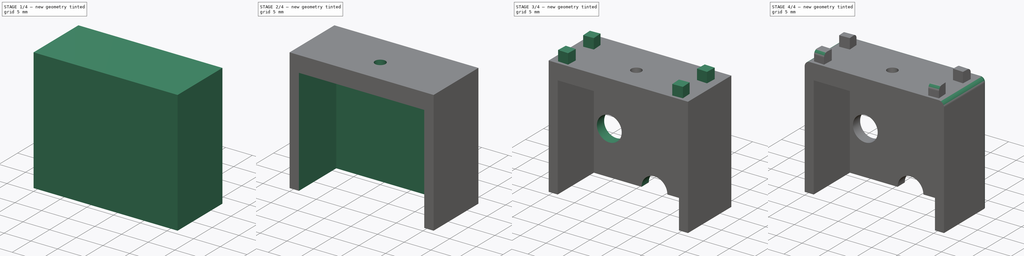
[diagram: build sequence overview — one tinted view per stage of 4, left to right]
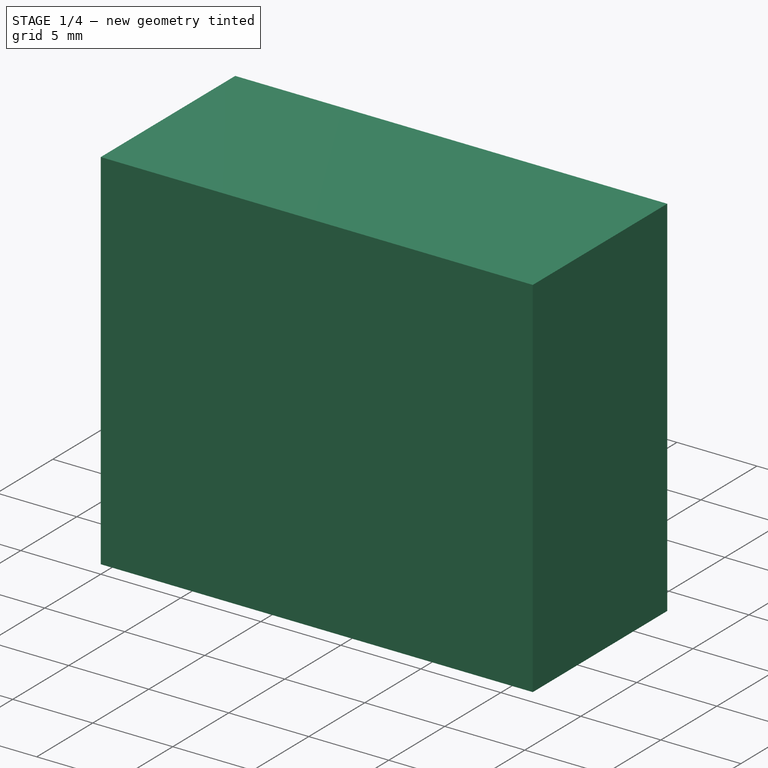
[diagram: stage 1 of 4 — iso view after this stage's code; geometry added in this stage tinted green]
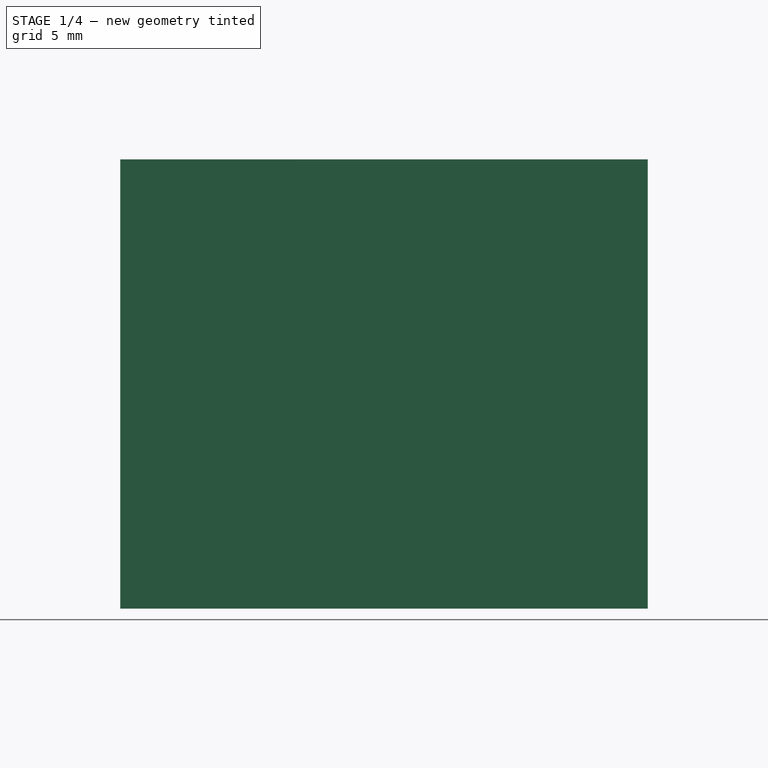
[diagram: stage 1 of 4 — front view after this stage's code; geometry added in this stage tinted green]
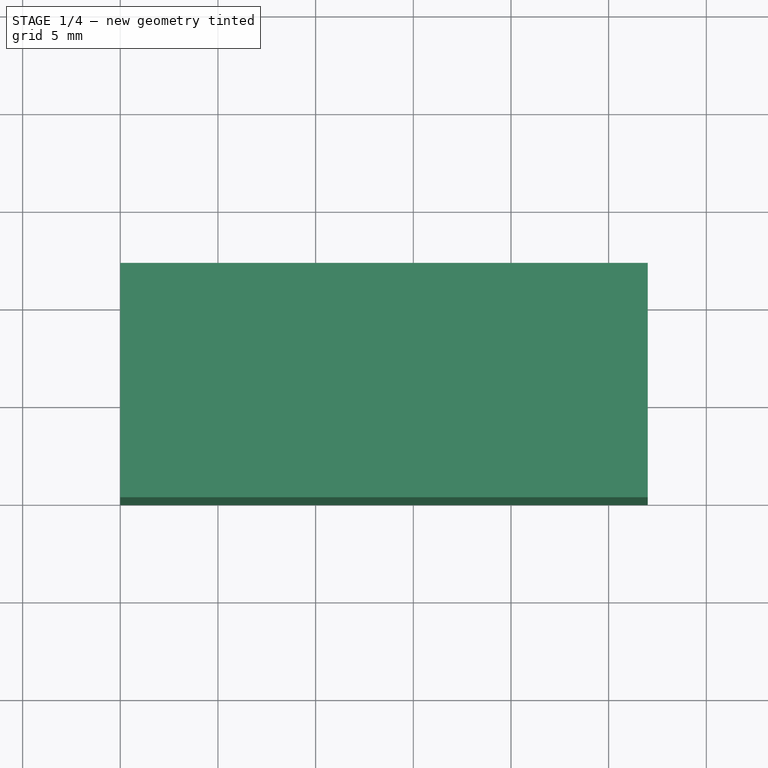
[diagram: stage 1 of 4 — top view after this stage's code; geometry added in this stage tinted green]
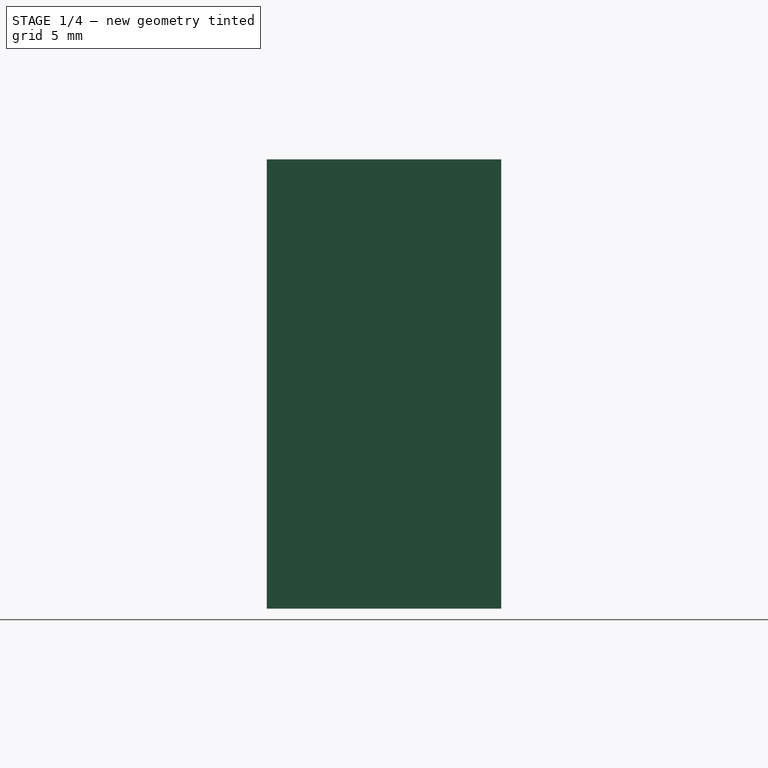
[diagram: stage 1 of 4 — right view after this stage's code; geometry added in this stage tinted green]
FCSTD DOCUMENT  (FreeCAD 0.17R13541 (Git))
Label: ServoToDC
License: All rights reserved
LicenseURL: http://en.wikipedia.org/wiki/All_rights_reserved
objects: Sketcher::SketchObject×6, PartDesign::Pocket×5, PartDesign::Fillet×2, Part::Box×1, PartDesign::FeatureBase×1, PartDesign::Pad×1, PartDesign::Body×1
note: 23 computed .brp shape members not serialized (recipe doc carries the construction recipe); baked Part::Feature solids carry a one-line shape summary decoded from their .brp

FEATURE [Part::Box] Box  label="Cube"
  AttacherType = Attacher::AttachEngine3D
  Height = 23
  Length = 27
  Width = 12
FEATURE [PartDesign::FeatureBase] BaseFeature
  BaseFeature = -> Box
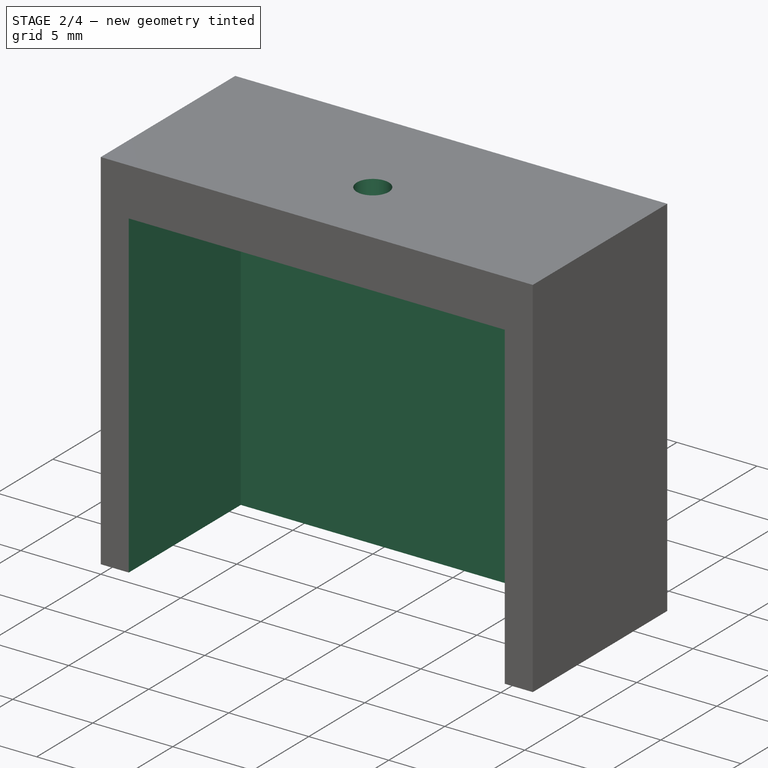
[diagram: stage 2 of 4 — iso view after this stage's code; geometry added in this stage tinted green]
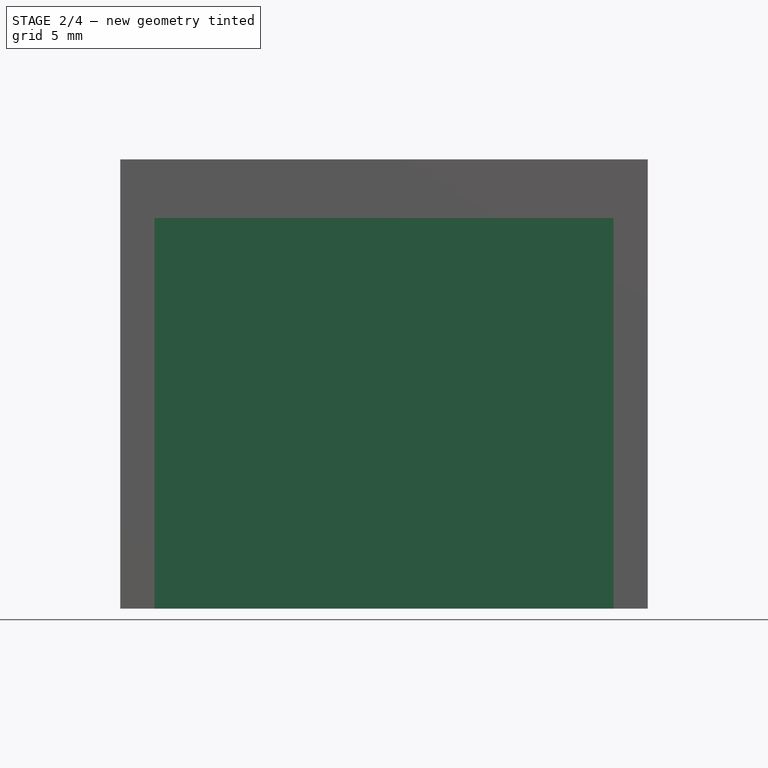
[diagram: stage 2 of 4 — front view after this stage's code; geometry added in this stage tinted green]
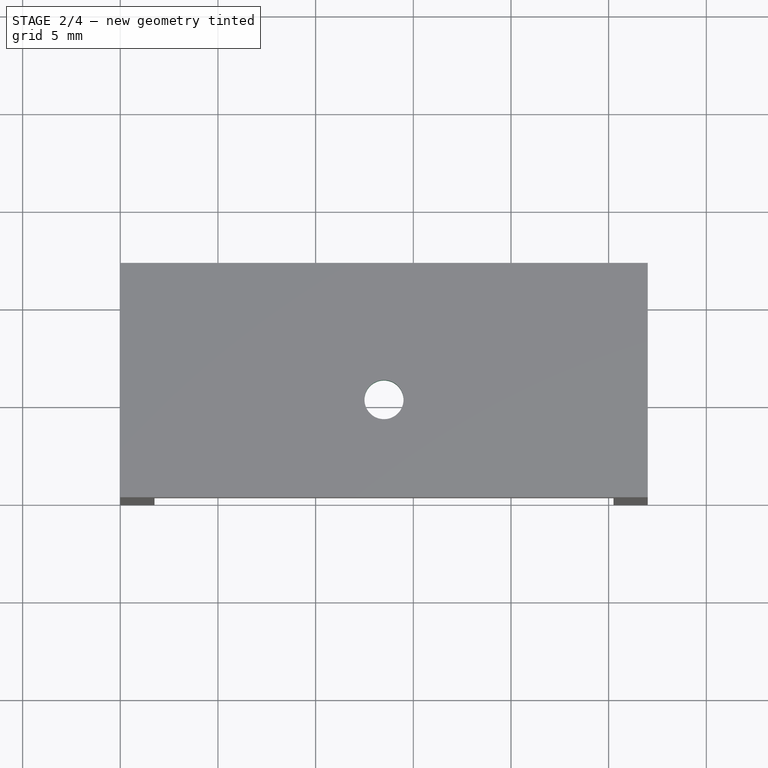
[diagram: stage 2 of 4 — top view after this stage's code; geometry added in this stage tinted green]
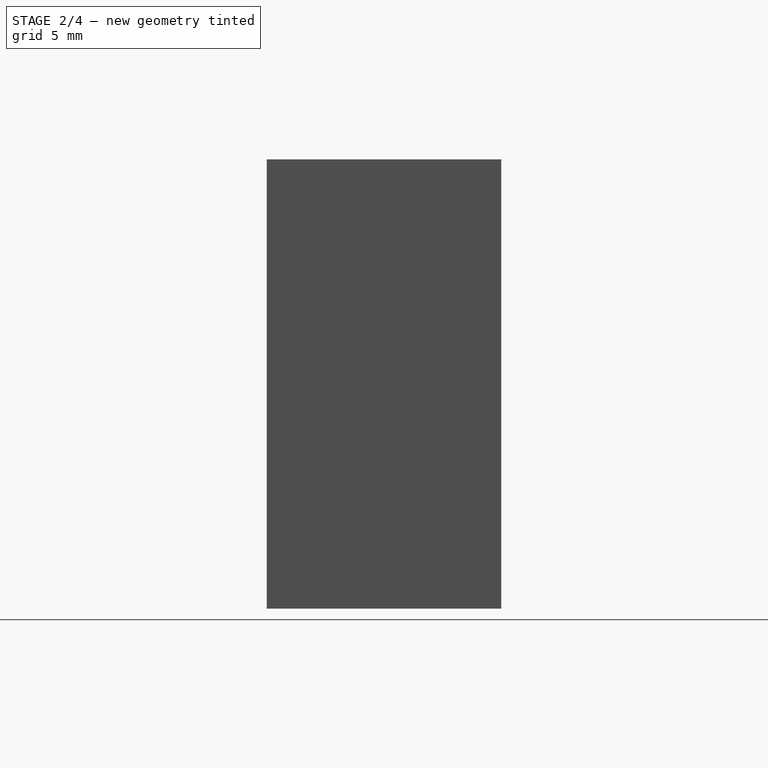
[diagram: stage 2 of 4 — right view after this stage's code; geometry added in this stage tinted green]
FEATURE [Sketcher::SketchObject] Sketch  label="MotorHole"
  ExternalGeometry = -> [BaseFeature]
  MapMode = 5
  Placement = pos=(0,0,0) rot=(1,0,0;1.5708rad)
  Support = -> [BaseFeature]
  sketch-geometry (5):
    g0: LineSegment StartX=1.75 StartY=20 StartZ=0 EndX=25.25 EndY=20 EndZ=0
    g1: LineSegment StartX=25.25 StartY=20 StartZ=0 EndX=25.25 EndY=0 EndZ=0
    g2: LineSegment StartX=25.25 StartY=0 StartZ=0 EndX=1.75 EndY=0 EndZ=0
    g3: LineSegment StartX=1.75 StartY=0 StartZ=0 EndX=1.75 EndY=20 EndZ=0
    g4: GeomPoint X=13.5 Y=0 Z=0
  constraints (13):
    c: Coincident(g0,g1)
    c: Coincident(g1,g2)
    c: Coincident(g2,g3)
    c: Coincident(g3,g0)
    c: Horizontal(g0)
    c: Horizontal(g2)
    c: Vertical(g1)
    c: Vertical(g3)
    c: PointOnObject(g2,g-5)
    c: Symmetric(g2,g1,g4)
    c: Symmetric(g-1,g-5,g4)
    c: DistanceX(g0,g0) = 23.5
    c: DistanceY(g1,g1) = 20
FEATURE [PartDesign::Pocket] Pocket  label="MotorPocket"
  BaseFeature = -> BaseFeature
  Length = 10
  Length2 = 100
  Profile = -> Sketch
  Type = 0
FEATURE [Sketcher::SketchObject] Sketch002  label="ServoScrewHole"
  ExternalGeometry = -> [Pocket]
  MapMode = 5
  Placement = pos=(0,0,20) rot=(1,0,0;3.14159rad)
  Support = -> [Pocket]
  sketch-geometry (3):
    g0: Circle CenterX=13.5 CenterY=-5 CenterZ=0 NormalX=0 NormalY=0 NormalZ=1 AngleXU=0 Radius=1
    g1: GeomPoint X=13.5 Y=0 Z=0
    g2: GeomPoint X=25.25 Y=-5 Z=0
  constraints (5):
    c: Radius(g0) = 1
    c: Symmetric(g-4,g-5,g1)
    c: Vertical(g1,g0)
    c: Symmetric(g-5,g-5,g2)
    c: Horizontal(g2,g0)
FEATURE [PartDesign::Pocket] Pocket001  label="ScrewPocket"
  BaseFeature = -> Pocket
  Length = 5
  Length2 = 100
  Profile = -> Sketch002
  Type = 1
FEATURE [Sketcher::SketchObject] Sketch003  label="ScrewHead"
  ExternalGeometry = -> [Pocket001]
  MapMode = 5
  Placement = pos=(0,0,20) rot=(1,0,0;3.14159rad)
  Support = -> [Pocket001]
  sketch-geometry (3):
    g0: GeomPoint X=25.1 Y=-5 Z=0
    g1: GeomPoint X=13.5 Y=0 Z=0
    g2: Circle CenterX=13.5 CenterY=-5 CenterZ=0 NormalX=0 NormalY=0 NormalZ=1 AngleXU=0 Radius=2
  constraints (7):
    c: PointOnObject(g0,g-5)
    c: PointOnObject(g1,g-3)
    c: Symmetric(g-4,g-5,g1)
    c: Symmetric(g-5,g-5,g0)
    c: Vertical(g1,g2)
    c: Horizontal(g2,g0)
    c: Radius(g2) = 2
FEATURE [PartDesign::Pocket] Pocket002  label="ScrewHeadPocket"
  BaseFeature = -> Pocket001
  Length = 1.5
  Length2 = 100
  Profile = -> Sketch003
  Type = 0
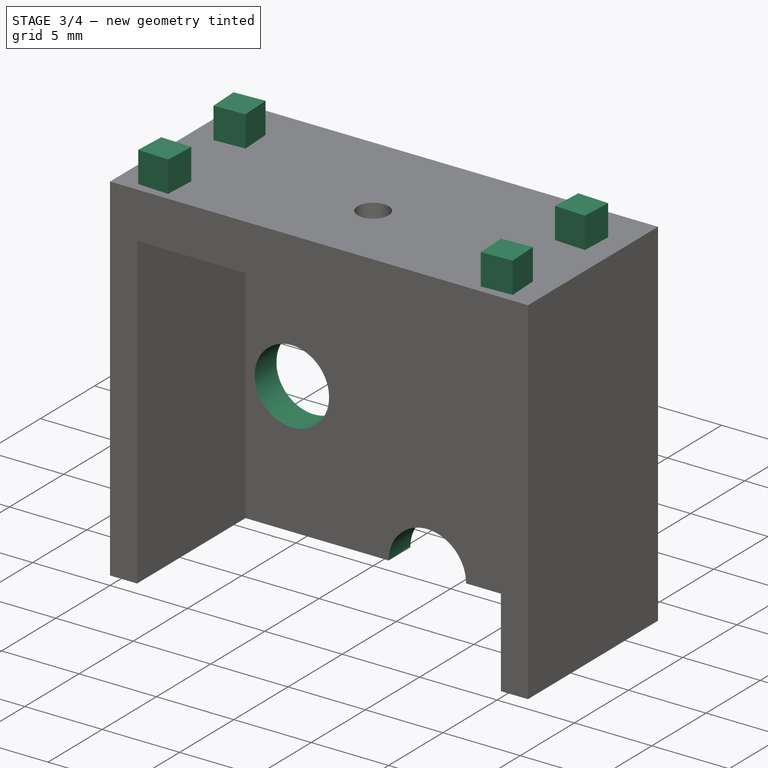
[diagram: stage 3 of 4 — iso view after this stage's code; geometry added in this stage tinted green]
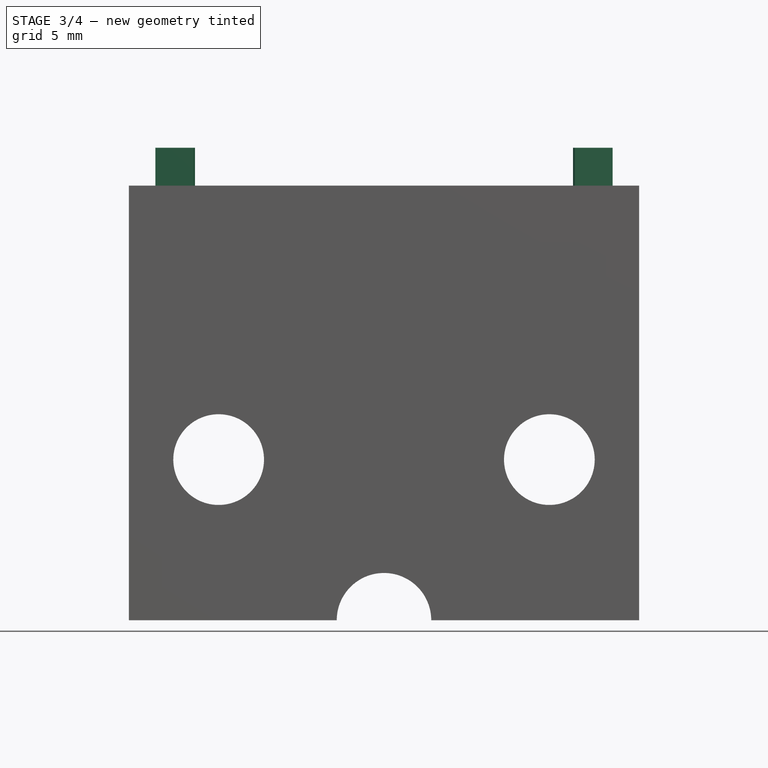
[diagram: stage 3 of 4 — front view after this stage's code; geometry added in this stage tinted green]
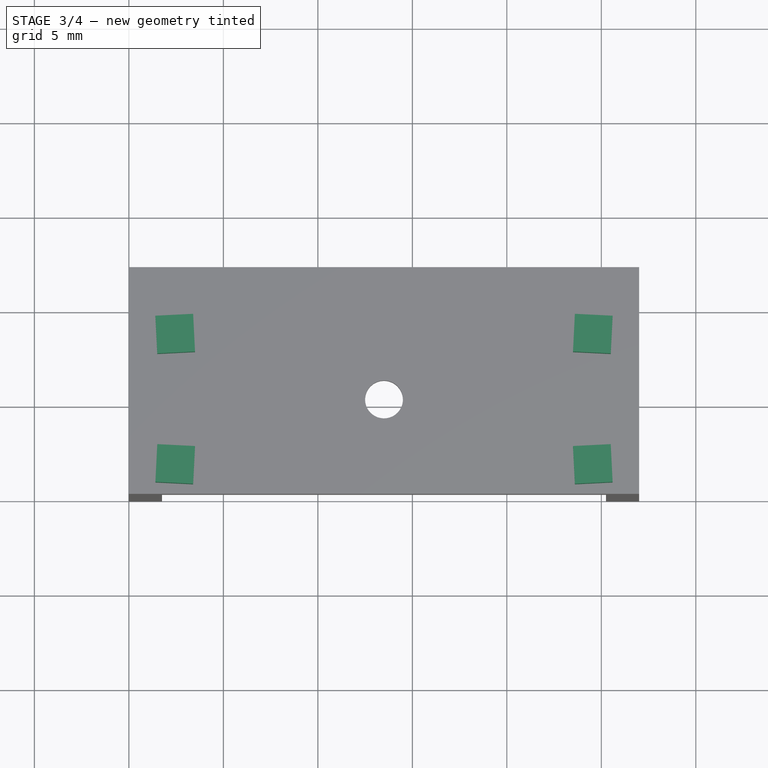
[diagram: stage 3 of 4 — top view after this stage's code; geometry added in this stage tinted green]
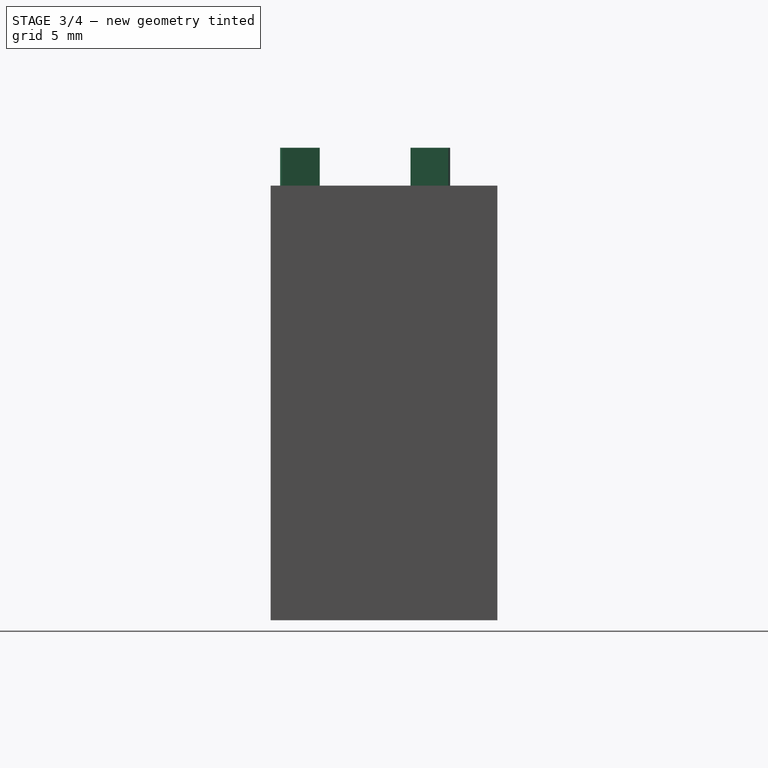
[diagram: stage 3 of 4 — right view after this stage's code; geometry added in this stage tinted green]
FEATURE [Sketcher::SketchObject] Sketch004  label="MotorScrews"
  ExternalGeometry = -> [Pocket002]
  MapMode = 5
  Placement = pos=(0,10,0) rot=(1,0,0;1.5708rad)
  Support = -> [Pocket002]
  sketch-geometry (4):
    g0: Circle CenterX=4.75 CenterY=8.5 CenterZ=0 NormalX=0 NormalY=0 NormalZ=1 AngleXU=0 Radius=2.4
    g1: Circle CenterX=22.25 CenterY=8.5 CenterZ=0 NormalX=0 NormalY=0 NormalZ=1 AngleXU=0 Radius=2.4
    g2: GeomPoint X=13.5 Y=8.5 Z=0
    g3: GeomPoint X=13.5 Y=20 Z=0
  constraints (9):
    c: Radius(g1) = 2.4
    c: Radius(g0) = 2.4
    c: Horizontal(g0,g1)
    c: DistanceX(g0,g1) = 17.5
    c: PointOnObject(g3,g-3)
    c: Symmetric(g-5,g-4,g3)
    c: Vertical(g3,g2)
    c: Symmetric(g0,g1,g2)
    c: Distance(g3,g2) = 11.5
FEATURE [PartDesign::Pocket] Pocket003  label="MotorScrewsPocket"
  BaseFeature = -> Pocket002
  Length = 5
  Length2 = 100
  Profile = -> Sketch004
  Type = 1
FEATURE [Sketcher::SketchObject] Sketch005  label="SmallArc"
  ExternalGeometry = -> [Pocket003]
  MapMode = 5
  Placement = pos=(0,10,0) rot=(1,0,0;1.5708rad)
  Support = -> [Pocket003]
  sketch-geometry (2):
    g0: ArcOfCircle CenterX=13.5 CenterY=0 CenterZ=0 NormalX=0 NormalY=0 NormalZ=1 AngleXU=0 Radius=2.5 StartAngle=0 EndAngle=3.14159
    g1: LineSegment StartX=11 StartY=0 StartZ=0 EndX=16 EndY=0 EndZ=0
  constraints (8):
    c: Angle(g0) = 3.14159
    c: PointOnObject(g0,g-3)
    c: PointOnObject(g0,g-3)
    c: Symmetric(g-3,g-3,g0)
    c: Radius(g0) = 2.5
    c: Coincident(g1,g0)
    c: Horizontal(g1)
    c: Coincident(g1,g0)
FEATURE [PartDesign::Pocket] Pocket004  label="SmallArcPocket"
  BaseFeature = -> Pocket003
  Length = 5
  Length2 = 100
  Profile = -> Sketch005
  Type = 1
FEATURE [Sketcher::SketchObject] Sketch006  label="ServoSketch"
  ExternalGeometry = -> [Pocket004]
  MapMode = 5
  Placement = pos=(0,0,23) rot=(0,0,1;0rad)
  Support = -> [Pocket004]
  sketch-geometry (18):
    g0: LineSegment StartX=3.4 StartY=9.4975 StartZ=0 EndX=1.4025 EndY=9.3975 EndZ=0
    g1: LineSegment StartX=1.4025 StartY=9.3975 StartZ=0 EndX=1.5025 EndY=7.4 EndZ=0
    g2: LineSegment StartX=1.5025 StartY=7.4 StartZ=0 EndX=3.5 EndY=7.5 EndZ=0
    g3: LineSegment StartX=3.5 StartY=7.5 StartZ=0 EndX=3.4 EndY=9.4975 EndZ=0
    g4: LineSegment StartX=1.5025 StartY=2.6 StartZ=0 EndX=3.5 EndY=2.5 EndZ=0
    g5: LineSegment StartX=3.5 StartY=2.5 StartZ=0 EndX=3.4 EndY=0.502502 EndZ=0
    g6: LineSegment StartX=3.4 StartY=0.502502 StartZ=0 EndX=1.4025 EndY=0.602502 EndZ=0
    g7: LineSegment StartX=1.4025 StartY=0.602502 StartZ=0 EndX=1.5025 EndY=2.6 EndZ=0
    g8: LineSegment StartX=23.5 StartY=2.5 StartZ=0 EndX=25.4975 EndY=2.6 EndZ=0
    g9: LineSegment StartX=25.4975 StartY=2.6 StartZ=0 EndX=25.5975 EndY=0.602502 EndZ=0
    g10: LineSegment StartX=25.5975 StartY=0.602502 StartZ=0 EndX=23.6 EndY=0.502502 EndZ=0
    g11: LineSegment StartX=23.6 StartY=0.502502 StartZ=0 EndX=23.5 EndY=2.5 EndZ=0
    g12: LineSegment StartX=23.6 StartY=9.4975 StartZ=0 EndX=25.5975 EndY=9.3975 EndZ=0
    g13: LineSegment StartX=25.5975 StartY=9.3975 StartZ=0 EndX=25.4975 EndY=7.4 EndZ=0
    g14: LineSegment StartX=25.4975 StartY=7.4 StartZ=0 EndX=23.5 EndY=7.5 EndZ=0
    g15: LineSegment StartX=23.5 StartY=7.5 StartZ=0 EndX=23.6 EndY=9.4975 EndZ=0
    g16: LineSegment [constr] StartX=0 StartY=5 StartZ=0 EndX=27 EndY=5 EndZ=0
    g17: LineSegment [constr] StartX=13.5 StartY=12 StartZ=0 EndX=13.5 EndY=0 EndZ=0
  constraints (44):
    c: Coincident(g0,g1)
    c: Coincident(g1,g2)
    c: Coincident(g2,g3)
    c: Coincident(g3,g0)
    c: Coincident(g4,g5)
    c: Coincident(g5,g6)
    c: Coincident(g6,g7)
    c: Coincident(g7,g4)
    c: Coincident(g8,g9)
    c: Coincident(g9,g10)
    c: Coincident(g10,g11)
    c: Coincident(g11,g8)
    c: Coincident(g12,g13)
    c: Coincident(g13,g14)
    c: Coincident(g14,g15)
    c: Coincident(g15,g12)
    c: PointOnObject(g16,g-5)
    c: PointOnObject(g16,g-4)
    c: Horizontal(g16)
    c: PointOnObject(g-3,g16)
    c: PointOnObject(g17,g-6)
    c: PointOnObject(g17,g-7)
    c: PointOnObject(g-3,g17)
    c: Vertical(g17)
    c: Distance(g2,g17) = 10
    c: Distance(g2) = 2
    c: Symmetric(g0,g12,g17)
    c: Symmetric(g0,g12,g17)
    c: Symmetric(g1,g13,g17)
    c: Symmetric(g13,g8,g16)
    c: Symmetric(g9,g12,g16)
    c: Symmetric(g10,g12,g16)
    c: Symmetric(g8,g14,g16)
    c: Symmetric(g5,g10,g17)
    c: Symmetric(g6,g9,g17)
    c: Symmetric(g4,g8,g17)
    c: Symmetric(g4,g8,g17)
    c: Symmetric(g2,g14,g17)
    c: Distance(g2,g4) = 5
    c: Distance(g1,g4) = 4.8
    c: Perpendicular(g0,g3)
    c: Perpendicular(g0,g1)
    c: Perpendicular(g2,g1)
    c: Distance(g3) = 2
FEATURE [PartDesign::Pad] Pad  label="ServoMount"
  BaseFeature = -> Pocket004
  Length = 2
  Length2 = 100
  Profile = -> Sketch006
  Type = 0
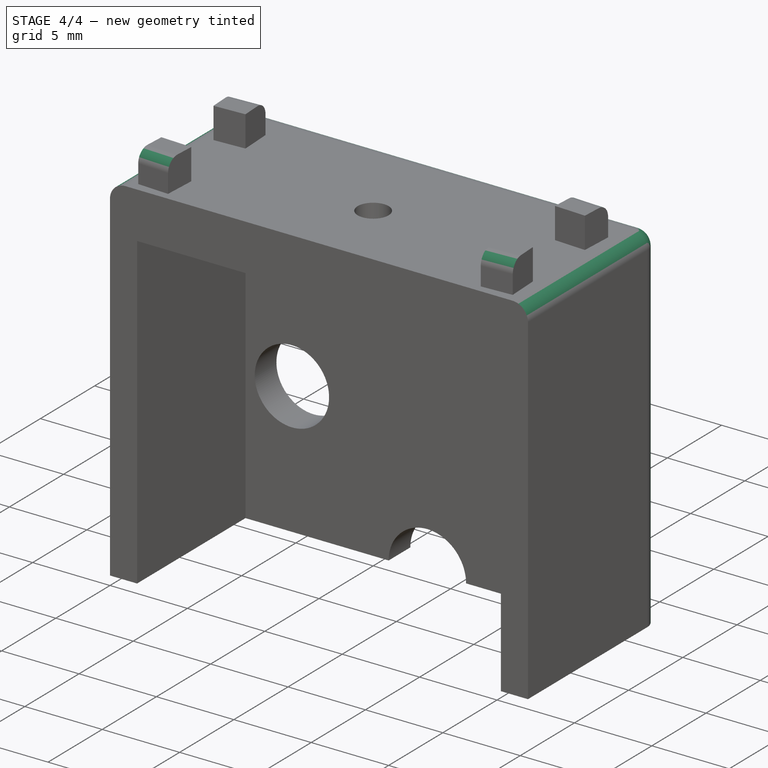
[diagram: stage 4 of 4 — iso view after this stage's code; geometry added in this stage tinted green]
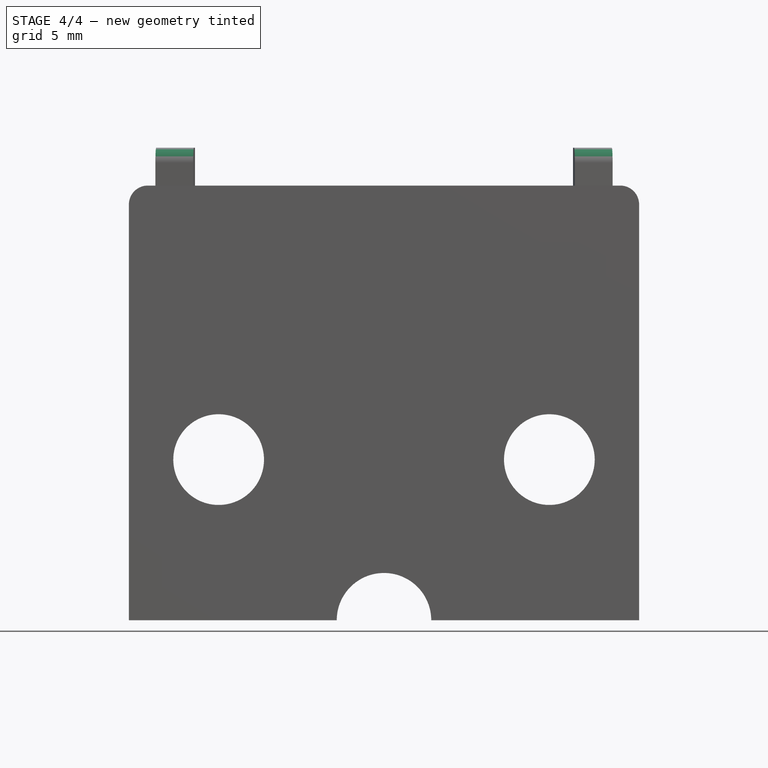
[diagram: stage 4 of 4 — front view after this stage's code; geometry added in this stage tinted green]
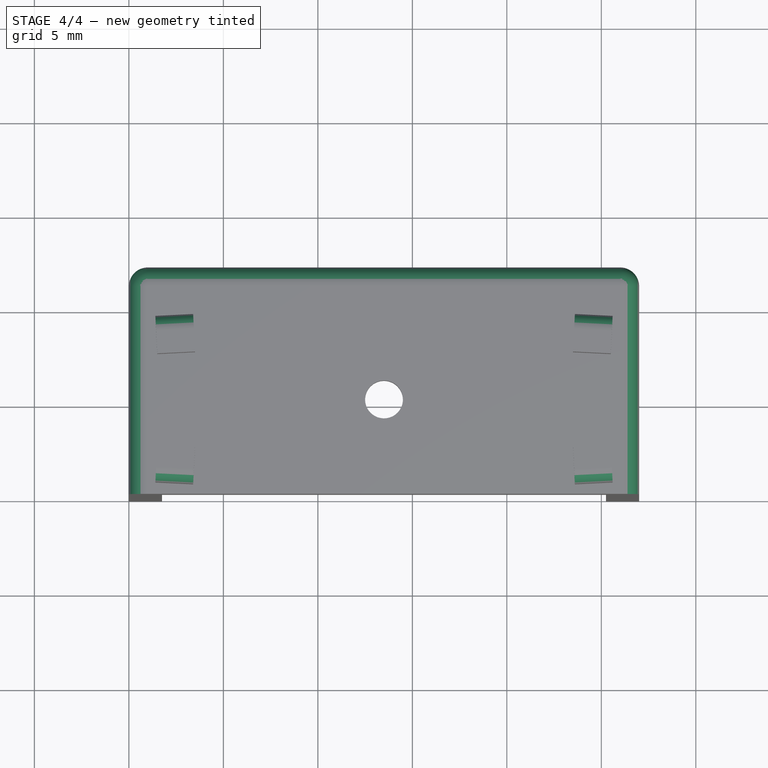
[diagram: stage 4 of 4 — top view after this stage's code; geometry added in this stage tinted green]
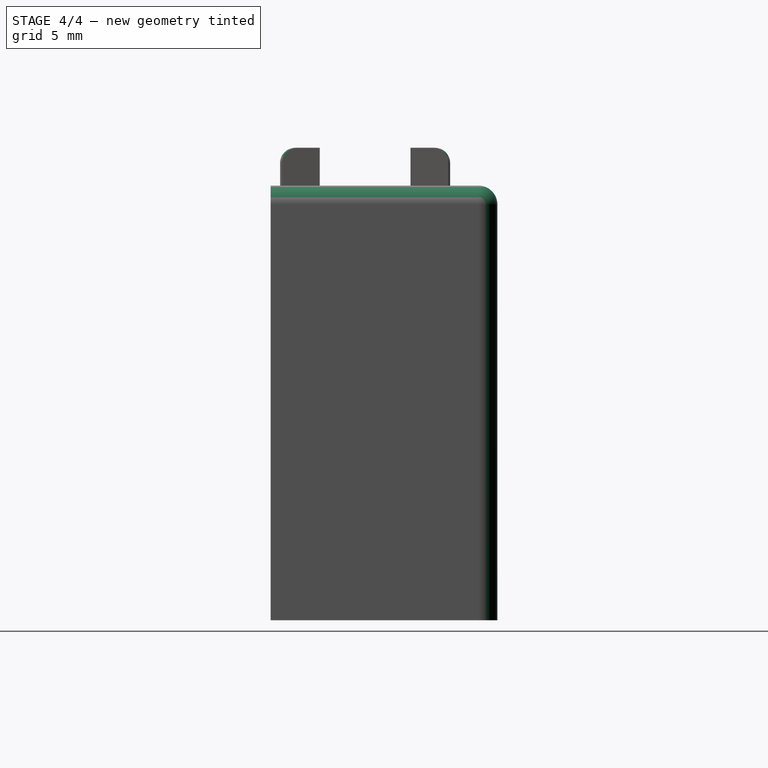
[diagram: stage 4 of 4 — right view after this stage's code; geometry added in this stage tinted green]
FEATURE [PartDesign::Fillet] Fillet
  Base = -> Pad [Edge13,Edge34,Edge12,Edge3,Edge2]
  BaseFeature = -> Pad
  Radius = 1
FEATURE [PartDesign::Fillet] Fillet001
  Base = -> Fillet [Edge80,Edge92,Edge77,Edge100]
  BaseFeature = -> Fillet
  Radius = 0.8
FEATURE [PartDesign::Body] Body
  BaseFeature = -> Box
  Group = -> [BaseFeature,Sketch,Pocket,Sketch002,Pocket001,Sketch003,Pocket002,Sketch004,Pocket003,Sketch005,Pocket004,Sketch006,Pad,Fillet,Fillet001]
  Origin = -> Origin
  Tip = -> Fillet001
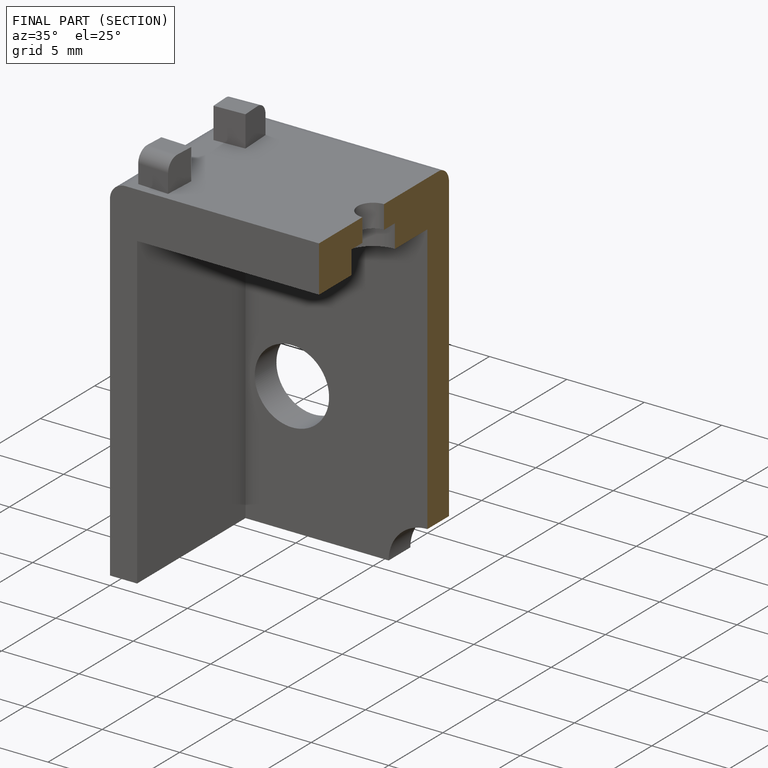
[diagram: finished part — half-section view (interior)]
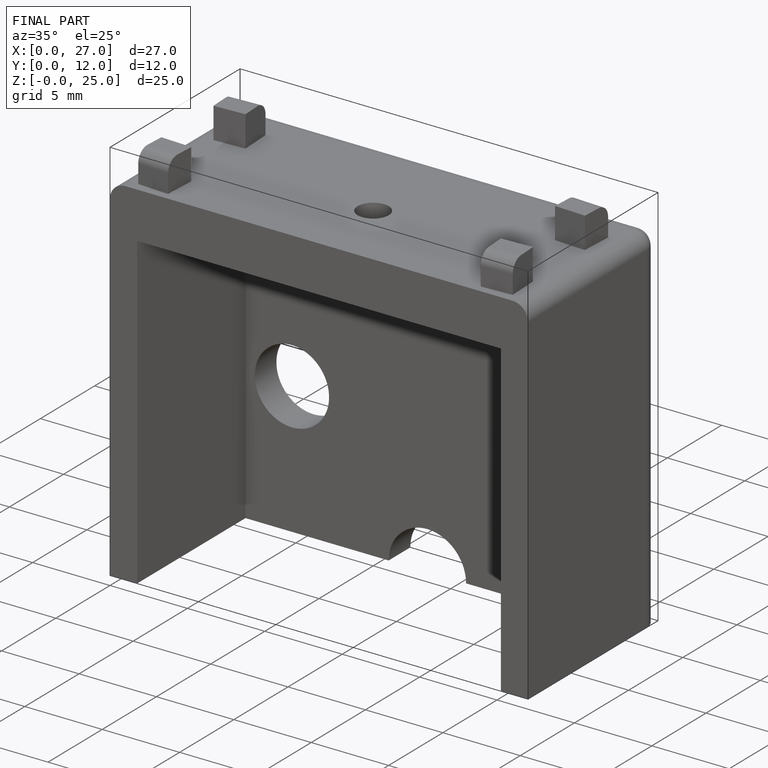
[diagram: finished part — iso view with bounding-box wireframe]
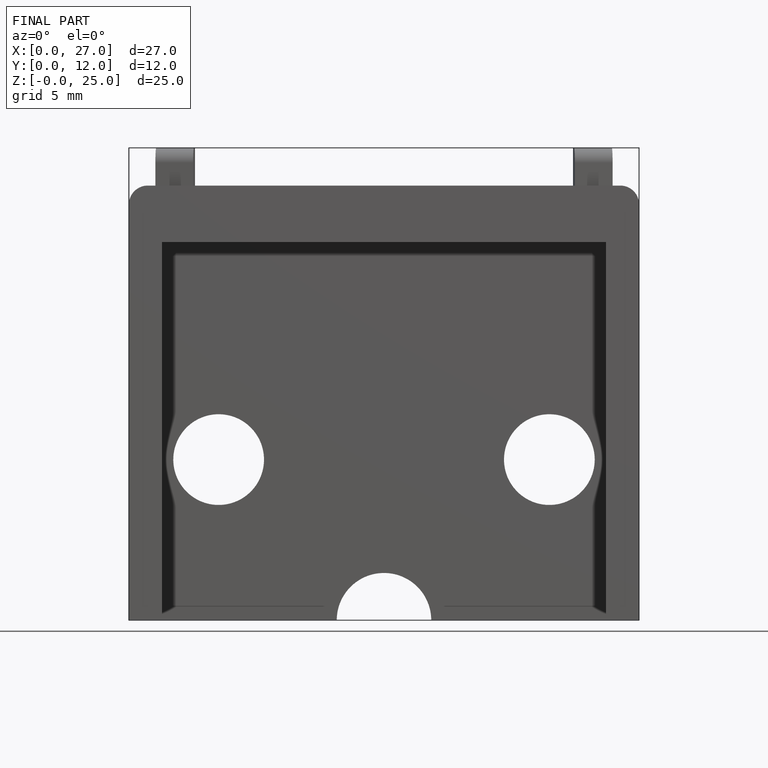
[diagram: finished part — front view with bounding-box wireframe]
